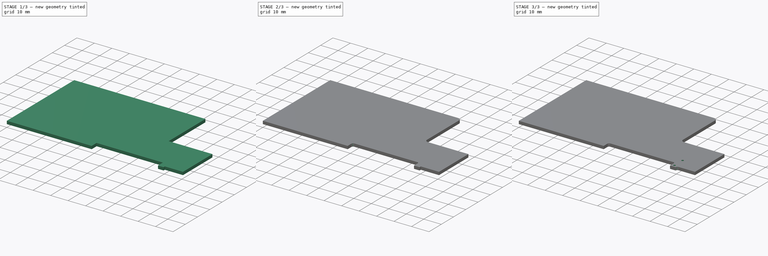
[diagram: build sequence overview — one tinted view per stage of 3, left to right]
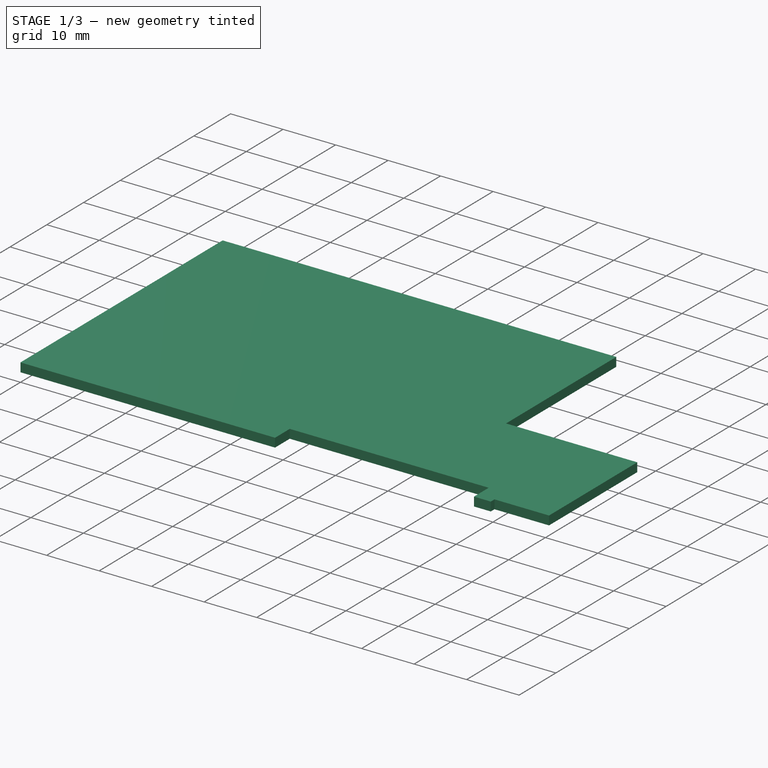
[diagram: stage 1 of 3 — iso view after this stage's code; geometry added in this stage tinted green]
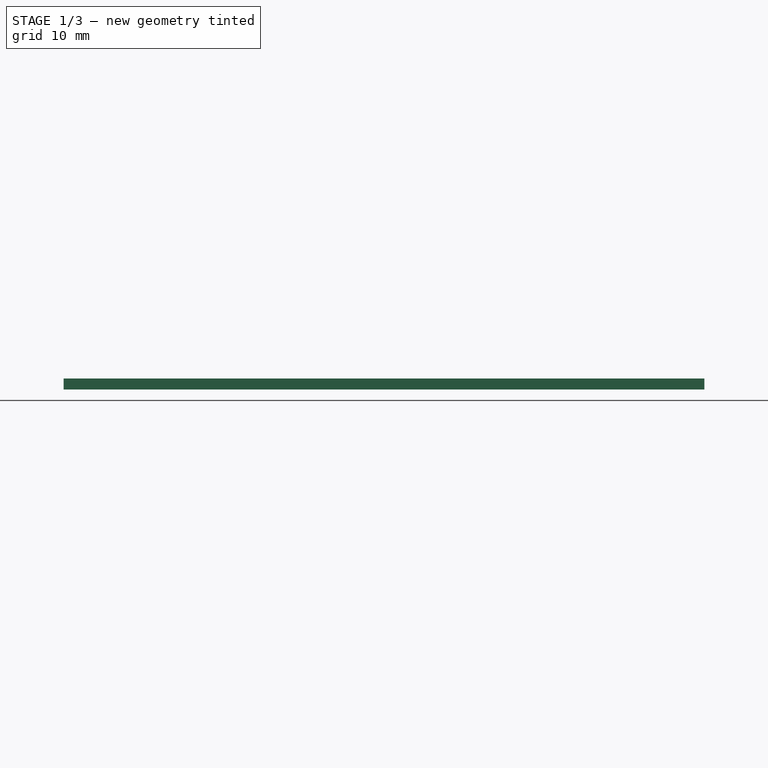
[diagram: stage 1 of 3 — front view after this stage's code; geometry added in this stage tinted green]
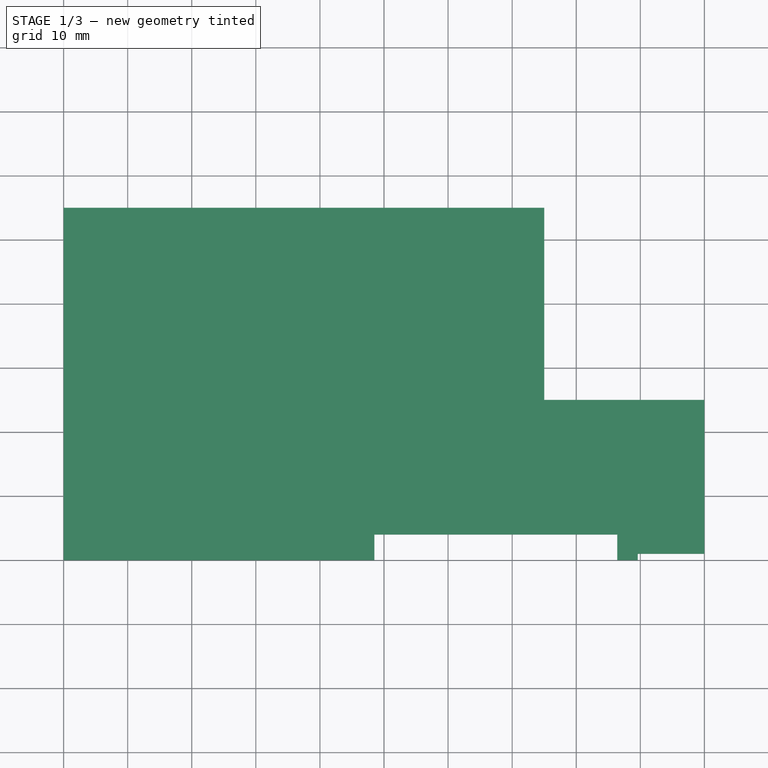
[diagram: stage 1 of 3 — top view after this stage's code; geometry added in this stage tinted green]
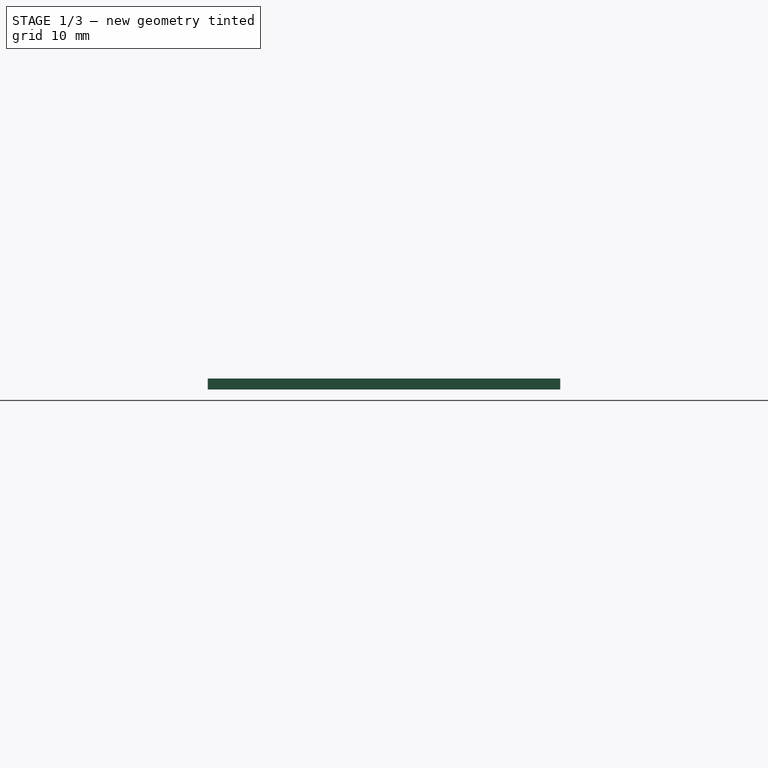
[diagram: stage 1 of 3 — right view after this stage's code; geometry added in this stage tinted green]
FCSTD DOCUMENT  (FreeCAD 0.19R24267 +99 (Git))
Label: PCB_Outline
License: Creative Commons Attribution-NonCommercial-ShareAlike
LicenseURL: http://creativecommons.org/licenses/by-nc-sa/4.0/
objects: Sketcher::SketchObject×3, PartDesign::Fillet×3, PartDesign::CoordinateSystem×1, PartDesign::Pad×1, PartDesign::Pocket×1, PartDesign::Hole×1, PartDesign::Body×1, App::Part×1
note: 17 computed .brp shape members not serialized (recipe doc carries the construction recipe); baked Part::Feature solids carry a one-line shape summary decoded from their .brp

FEATURE [PartDesign::CoordinateSystem] LCS_0  label="LCS_PCB_CornerLeft"
  AttacherType = Attacher::AttachEngine3D
  MapMode = 2
  Support = -> [X_Axis]
FEATURE [Sketcher::SketchObject] Sketch
  FullyConstrained = true
  MapMode = 5
  Support = -> [XY_Plane001]
  sketch-geometry (6):
    g0: LineSegment StartX=0 StartY=0 StartZ=0 EndX=100 EndY=0 EndZ=0
    g1: LineSegment StartX=100 StartY=0 StartZ=0 EndX=100 EndY=25 EndZ=0
    g2: LineSegment StartX=100 StartY=25 StartZ=0 EndX=75 EndY=25 EndZ=0
    g3: LineSegment StartX=75 StartY=25 StartZ=0 EndX=75 EndY=55 EndZ=0
    g4: LineSegment StartX=75 StartY=55 StartZ=0 EndX=0 EndY=55 EndZ=0
    g5: LineSegment StartX=0 StartY=55 StartZ=0 EndX=0 EndY=0 EndZ=0
  constraints (17):
    c: Coincident(g-1,g0)
    c: PointOnObject(g0,g-1)
    c: Coincident(g0,g1)
    c: Vertical(g1)
    c: Coincident(g1,g2)
    c: Horizontal(g2)
    c: Coincident(g2,g3)
    c: Vertical(g3)
    c: Coincident(g3,g4)
    c: PointOnObject(g4,g-2)
    c: Horizontal(g4)
    c: Coincident(g4,g5)
    c: Coincident(g5,g0)
    c: Distance(g0) = 100
    c: Distance(g5) = 55
    c: Distance(g4) = 75
    c: Distance(g1) = 25
FEATURE [PartDesign::Pad] Pad
  Direction = (1,1,1)
  Length = 1.7
  Length2 = 100
  Profile = -> Sketch
  Refine = true
  Reversed = true
  Type = 0
FEATURE [Sketcher::SketchObject] Sketch001
  FullyConstrained = true
  MapMode = 5
  Support = -> [XY_Plane001]
  sketch-geometry (8):
    g0: LineSegment StartX=48.5 StartY=0 StartZ=0 EndX=86.4 EndY=0 EndZ=0
    g1: LineSegment StartX=86.4 StartY=0 StartZ=0 EndX=86.4 EndY=4 EndZ=0
    g2: LineSegment StartX=86.4 StartY=4 StartZ=0 EndX=48.5 EndY=4 EndZ=0
    g3: LineSegment StartX=48.5 StartY=4 StartZ=0 EndX=48.5 EndY=0 EndZ=0
    g4: LineSegment StartX=89.6 StartY=0 StartZ=0 EndX=100 EndY=0 EndZ=0
    g5: LineSegment StartX=100 StartY=0 StartZ=0 EndX=100 EndY=1 EndZ=0
    g6: LineSegment StartX=100 StartY=1 StartZ=0 EndX=89.6 EndY=1 EndZ=0
    g7: LineSegment StartX=89.6 StartY=1 StartZ=0 EndX=89.6 EndY=0 EndZ=0
  constraints (25):
    c: Coincident(g0,g1)
    c: Coincident(g1,g2)
    c: Coincident(g2,g3)
    c: Coincident(g3,g0)
    c: Horizontal(g0)
    c: Horizontal(g2)
    c: Vertical(g1)
    c: Vertical(g3)
    c: PointOnObject(g0,g-1)
    c: DistanceX(g0) = 48.5
    c: Distance(g3) = 4
    c: DistanceX(g1) = 86.4
    c: Coincident(g4,g5)
    c: Coincident(g5,g6)
    c: Coincident(g6,g7)
    c: Coincident(g7,g4)
    c: Horizontal(g4)
    c: Horizontal(g6)
    c: Vertical(g5)
    c: Vertical(g7)
    c: PointOnObject(g4,g-1)
    c: Distance(g1,g7) = 3.2
    c: DistanceX(g4) = 100
    c: DistanceY(g6) = 1
    c: DistanceX(g4) = 89.6
FEATURE [PartDesign::Pocket] Pocket
  BaseFeature = -> Pad
  Length = 5
  Length2 = 100
  Profile = -> Sketch001
  Refine = true
  Type = 1
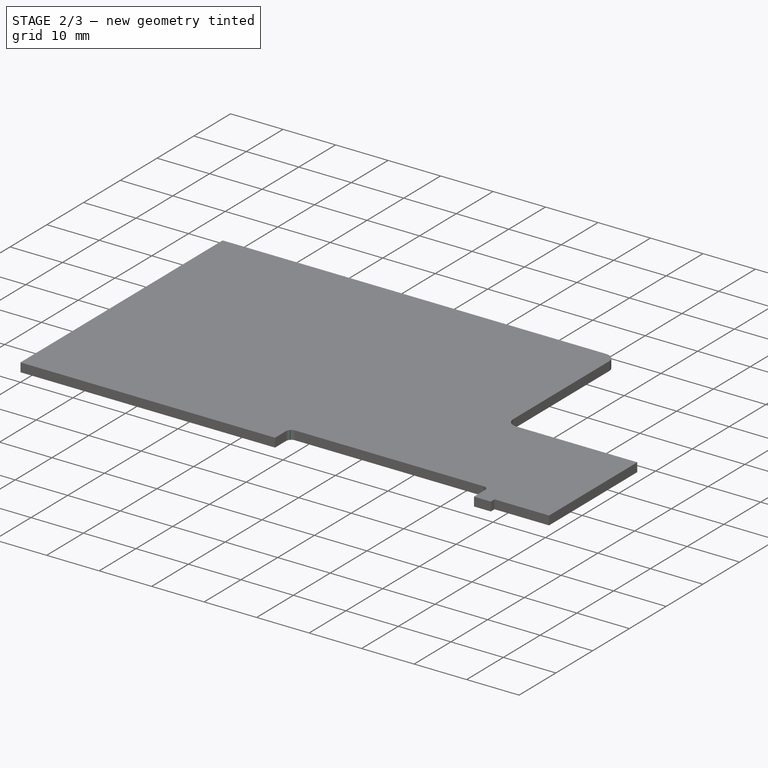
[diagram: stage 2 of 3 — iso view after this stage's code; geometry added in this stage tinted green]
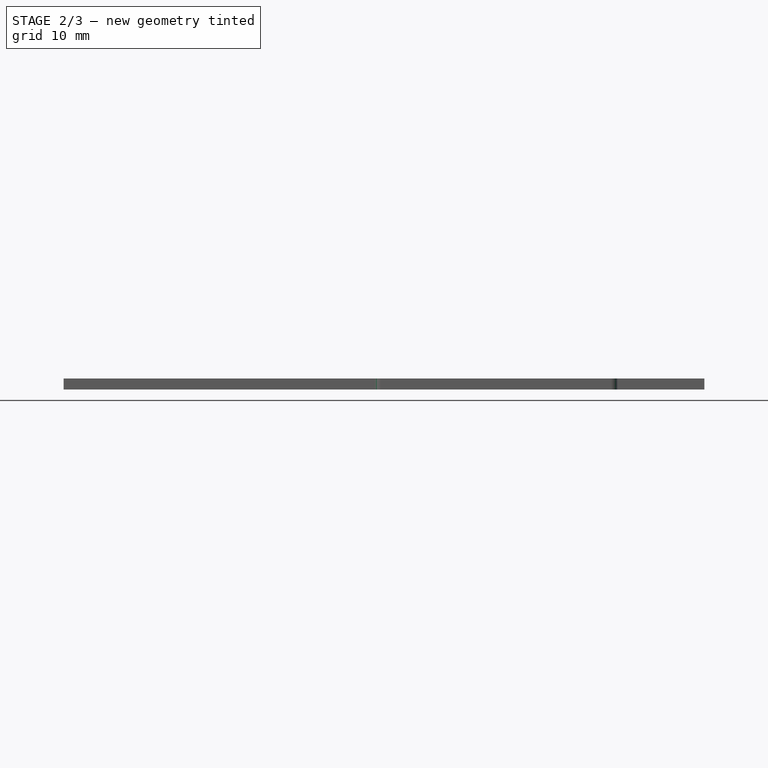
[diagram: stage 2 of 3 — front view after this stage's code; geometry added in this stage tinted green]
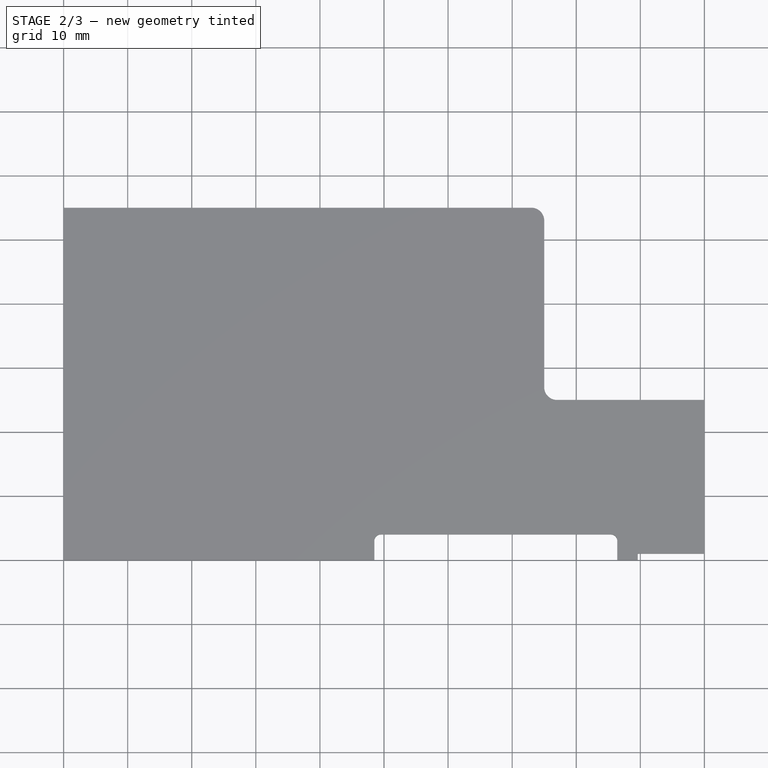
[diagram: stage 2 of 3 — top view after this stage's code; geometry added in this stage tinted green]
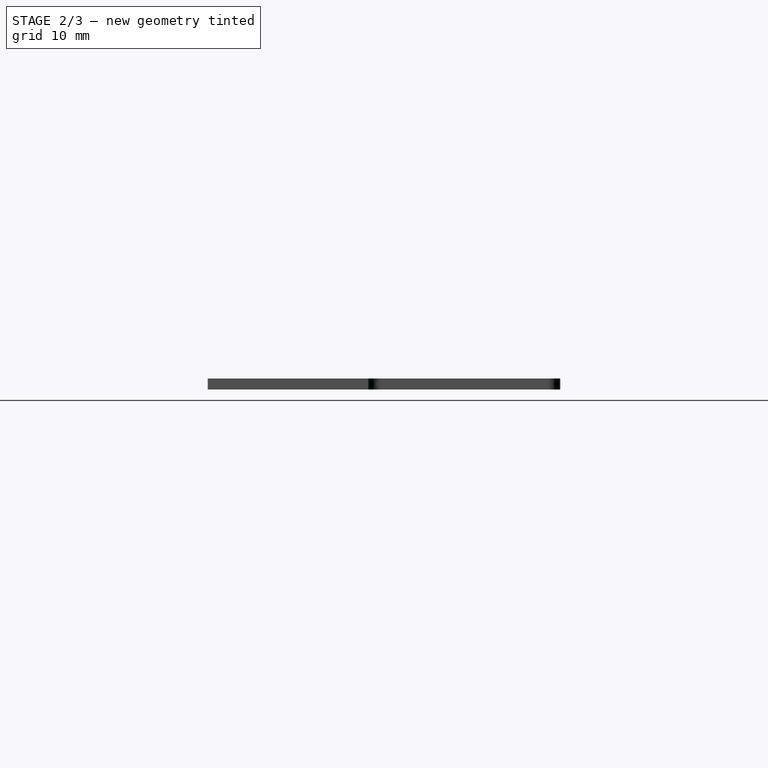
[diagram: stage 2 of 3 — right view after this stage's code; geometry added in this stage tinted green]
FEATURE [PartDesign::Fillet] Fillet
  Base = -> Pocket [Edge17,Edge36]
  BaseFeature = -> Pocket
  Radius = 1
  Refine = true
  SupportTransform = false
FEATURE [PartDesign::Fillet] Fillet002
  Base = -> Fillet [Edge40,Edge36]
  BaseFeature = -> Fillet
  Radius = 2
  Refine = true
  SupportTransform = false
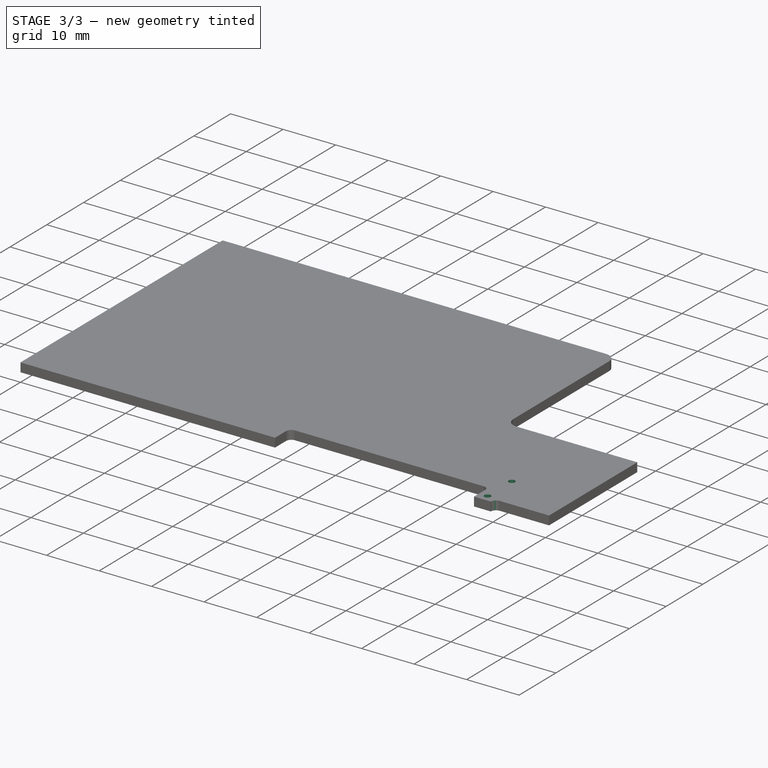
[diagram: stage 3 of 3 — iso view after this stage's code; geometry added in this stage tinted green]
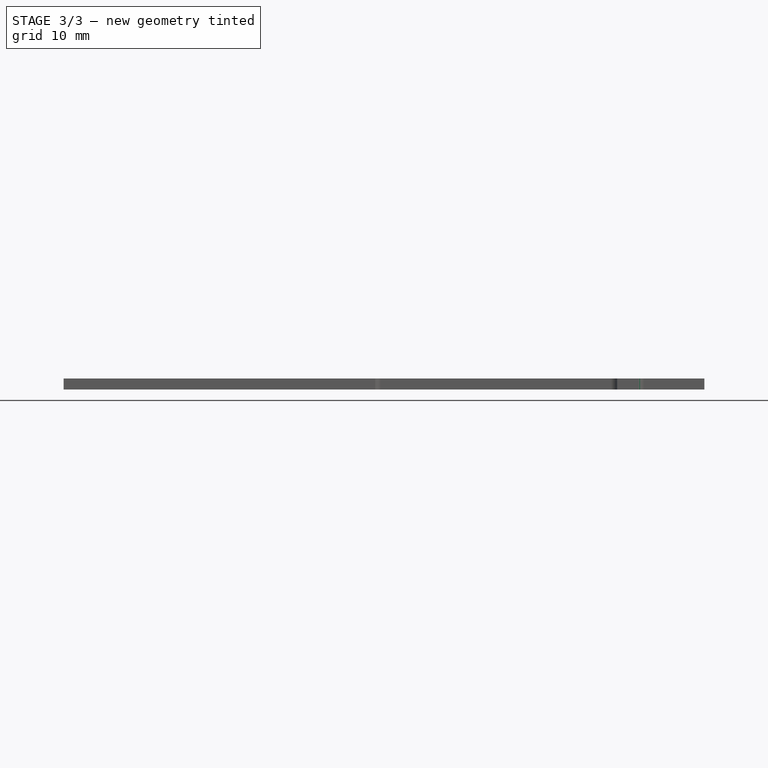
[diagram: stage 3 of 3 — front view after this stage's code; geometry added in this stage tinted green]
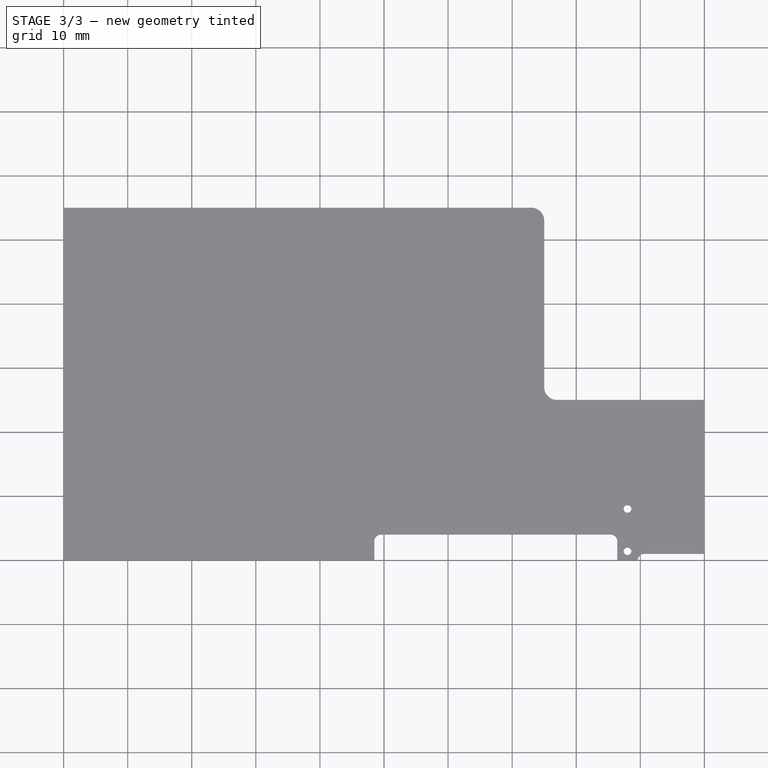
[diagram: stage 3 of 3 — top view after this stage's code; geometry added in this stage tinted green]
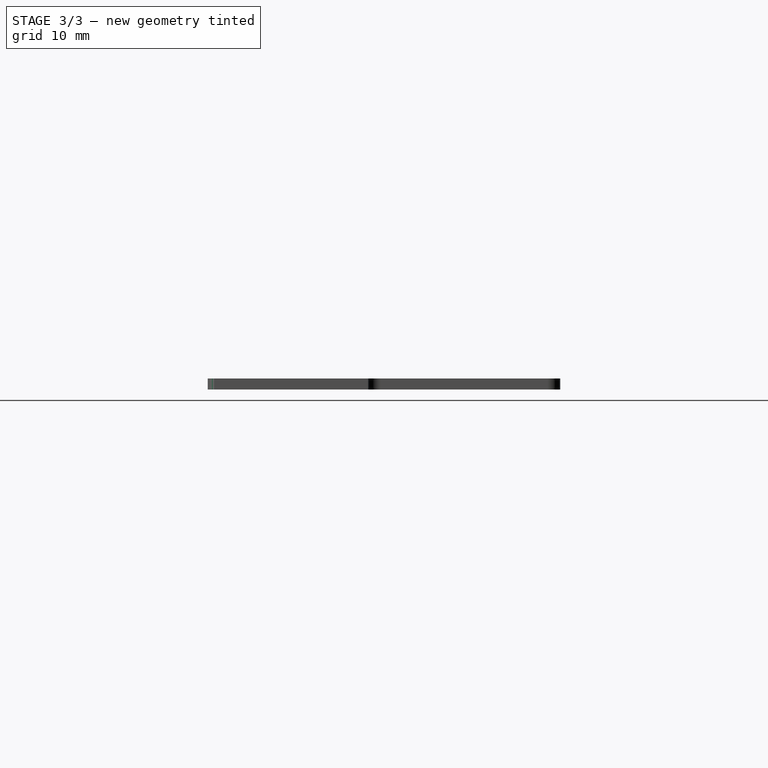
[diagram: stage 3 of 3 — right view after this stage's code; geometry added in this stage tinted green]
FEATURE [PartDesign::Fillet] Fillet003
  Base = -> Fillet002 [Edge26]
  BaseFeature = -> Fillet002
  Radius = 0.99
  Refine = true
  SupportTransform = false
FEATURE [Sketcher::SketchObject] Sketch002
  FullyConstrained = true
  MapMode = 5
  Support = -> [XY_Plane001]
  sketch-geometry (2):
    g0: Circle CenterX=88 CenterY=1.4 CenterZ=0 NormalX=0 NormalY=0 NormalZ=1 AngleXU=0 Radius=1
    g1: Circle CenterX=88 CenterY=8 CenterZ=0 NormalX=0 NormalY=0 NormalZ=1 AngleXU=0 Radius=1
  constraints (6):
    c: Vertical(g0,g1)
    c: Distance(g1,g0) = 6.6
    c: Radius(g0) = 1
    c: Radius(g1) = 1
    c: DistanceX(g0) = 88
    c: DistanceY(g0) = 1.4
FEATURE [PartDesign::Hole] Hole
  BaseFeature = -> Fillet003
  Depth = 25
  DepthType = 0
  Diameter = 1.2
  DrillForDepth = false
  DrillPoint = 1
  DrillPointAngle = 118
  HoleCutCountersinkAngle = 90
  HoleCutCustomValues = false
  HoleCutDepth = 0
  HoleCutDiameter = 6.1
  HoleCutType = 0
  ModelActualThread = false
  Profile = -> Sketch002
  Refine = true
  Tapered = false
  TaperedAngle = 90
  ThreadAngle = 0
  ThreadClass = 0
  ThreadCutOffInner = 0
  ThreadCutOffOuter = 0
  ThreadDirection = 0
  ThreadFit = 0
  ThreadPitch = 0
  ThreadSize = 0
  ThreadType = 0
  Threaded = false
FEATURE [PartDesign::Body] Body
  Group = -> [Sketch,Pad,Sketch001,Pocket,Fillet,Fillet002,Fillet003,Sketch002,Hole]
  Origin = -> Origin001
  Tip = -> Hole
FEATURE [App::Part] PCB_Board
  Group = -> [LCS_0,Body]
  Origin = -> Origin
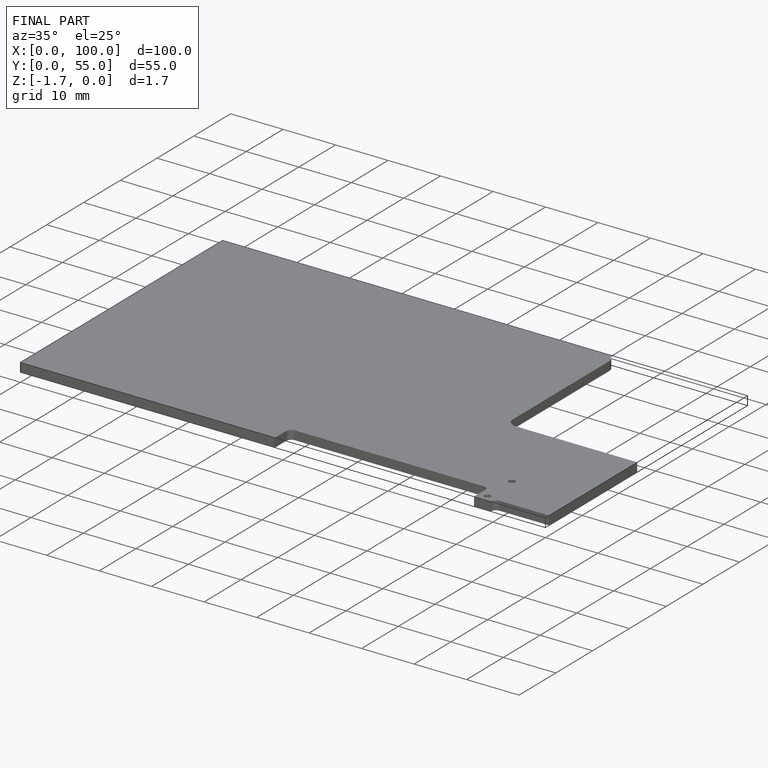
[diagram: finished part — iso view with bounding-box wireframe]
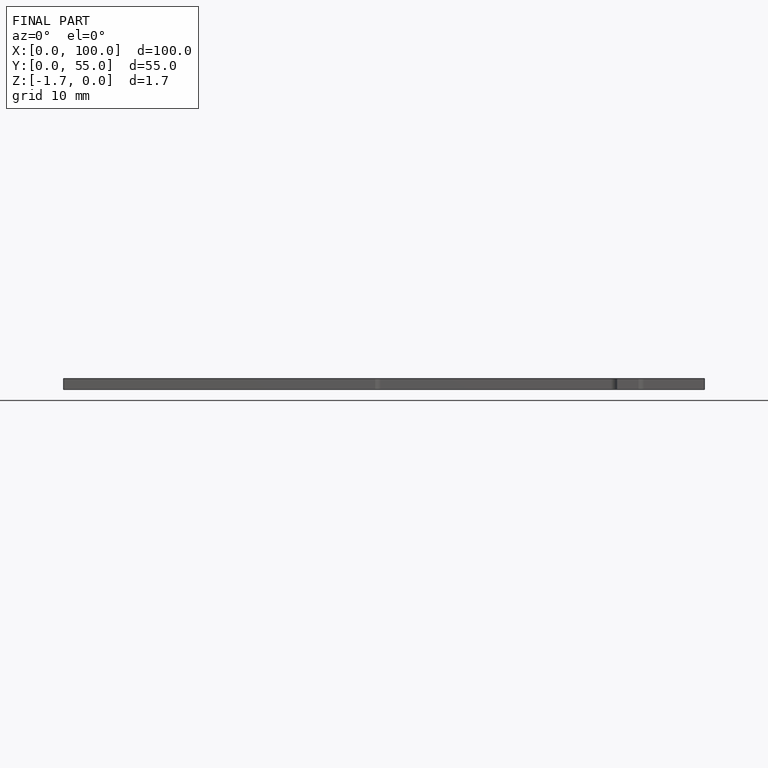
[diagram: finished part — front view with bounding-box wireframe]
